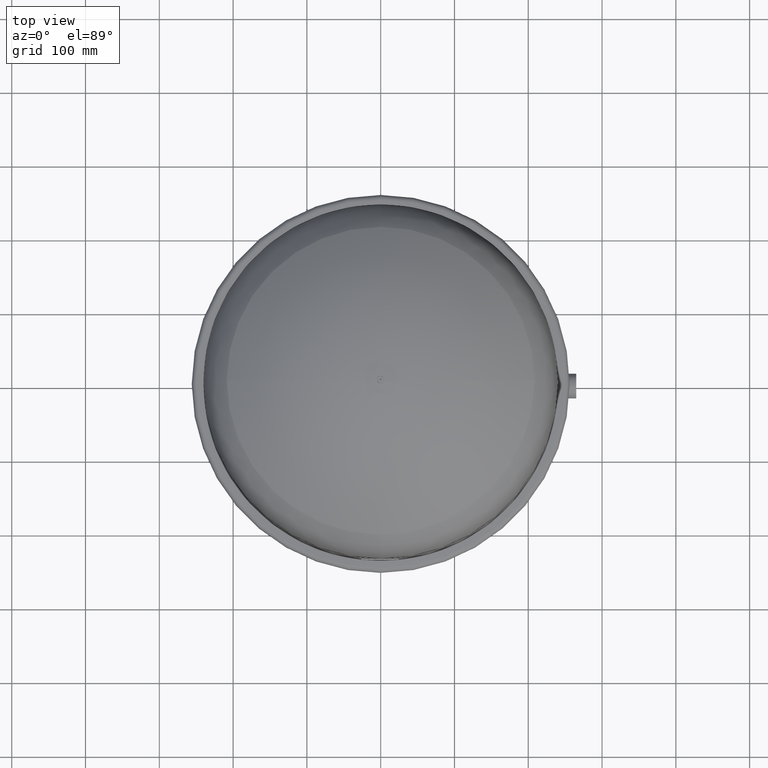
[diagram: clean part render]
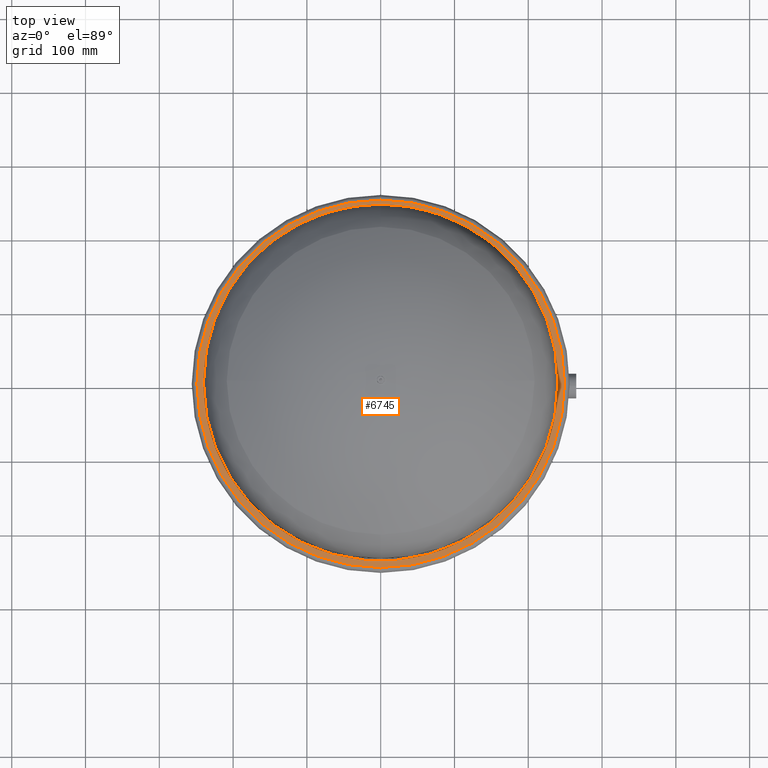
[diagram: same view with one face highlighted and labeled with its STEP entity id]
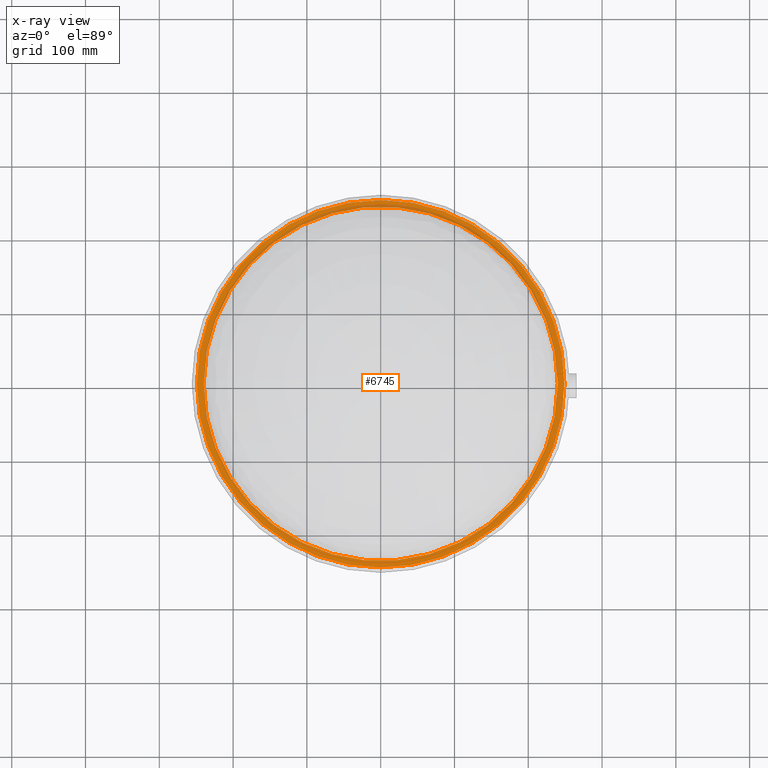
[diagram: x-ray of the same camera — body ghosted, the highlighted face saturated]
A machine part, top view. The second image highlights one B-rep face of the part: STEP entity #6745.
The next image is the same camera in x-ray: the body ghosted, the highlighted face saturated — about 13% of this face is hidden behind the body in this view.
In plain terms, the highlighted planar face has unit normal (0, 0, 1).
Its self-contained STEP definition (entity closure, byte-faithful):
#6520=CARTESIAN_POINT('',(-240.0,-6.582477E-016,349.75));
#6521=VERTEX_POINT('',#6520);
#6537=CARTESIAN_POINT('',(240.0,-3.004880E-014,349.75));
#6538=VERTEX_POINT('',#6537);
#6545=CARTESIAN_POINT('',(0.0,-6.582477E-016,349.75));
#6546=DIRECTION('',(0.0,0.0,-1.0));
#6547=DIRECTION('',(-1.0,0.0,0.0));
#6548=AXIS2_PLACEMENT_3D('',#6545,#6546,#6547);
#6549=CIRCLE('',#6548,240.0);
#6550=EDGE_CURVE('',#6521,#6538,#6549,.T.);
#6674=CARTESIAN_POINT('',(0.0,249.00000000000003,349.75));
#6675=VERTEX_POINT('',#6674);
#6691=CARTESIAN_POINT('',(-3.049270E-014,-249.00000000000003,349.75));
#6692=VERTEX_POINT('',#6691);
#6700=CARTESIAN_POINT('',(-249.00000000000003,-6.582477E-016,349.75));
#6701=VERTEX_POINT('',#6700);
#6702=CARTESIAN_POINT('',(0.0,-6.582477E-016,349.75));
#6703=DIRECTION('',(0.0,0.0,-1.0));
#6704=DIRECTION('',(-1.0,0.0,0.0));
#6705=AXIS2_PLACEMENT_3D('',#6702,#6703,#6704);
#6706=CIRCLE('',#6705,249.00000000000003);
#6707=EDGE_CURVE('',#6692,#6701,#6706,.T.);
#6709=CARTESIAN_POINT('',(0.0,-6.582477E-016,349.75));
#6710=DIRECTION('',(0.0,0.0,-1.0));
#6711=DIRECTION('',(-1.0,0.0,0.0));
#6712=AXIS2_PLACEMENT_3D('',#6709,#6710,#6711);
#6713=CIRCLE('',#6712,249.00000000000003);
#6714=EDGE_CURVE('',#6701,#6675,#6713,.T.);
#6719=CARTESIAN_POINT('',(-244.50000000000003,-6.582477E-016,349.75));
#6720=DIRECTION('',(0.0,0.0,1.0));
#6721=DIRECTION('',(0.0,-1.0,0.0));
#6722=AXIS2_PLACEMENT_3D('',#6719,#6720,#6721);
#6723=PLANE('',#6722);
#6724=ORIENTED_EDGE('',*,*,#6714,.F.);
#6725=ORIENTED_EDGE('',*,*,#6707,.F.);
#6726=CARTESIAN_POINT('',(0.0,-6.582477E-016,349.75));
#6727=DIRECTION('',(0.0,0.0,-1.0));
#6728=DIRECTION('',(-1.0,0.0,0.0));
#6729=AXIS2_PLACEMENT_3D('',#6726,#6727,#6728);
#6730=CIRCLE('',#6729,249.00000000000003);
#6731=EDGE_CURVE('',#6675,#6692,#6730,.T.);
#6732=ORIENTED_EDGE('',*,*,#6731,.F.);
#6733=EDGE_LOOP('',(#6724,#6725,#6732));
#6734=FACE_OUTER_BOUND('',#6733,.T.);
#6735=ORIENTED_EDGE('',*,*,#6550,.T.);
#6736=CARTESIAN_POINT('',(0.0,-6.582477E-016,349.75));
#6737=DIRECTION('',(0.0,0.0,-1.0));
#6738=DIRECTION('',(-1.0,0.0,0.0));
#6739=AXIS2_PLACEMENT_3D('',#6736,#6737,#6738);
#6740=CIRCLE('',#6739,240.0);
#6741=EDGE_CURVE('',#6538,#6521,#6740,.T.);
#6742=ORIENTED_EDGE('',*,*,#6741,.T.);
#6743=EDGE_LOOP('',(#6735,#6742));
#6744=FACE_BOUND('',#6743,.T.);
#6745=ADVANCED_FACE('',(#6734,#6744),#6723,.T.);